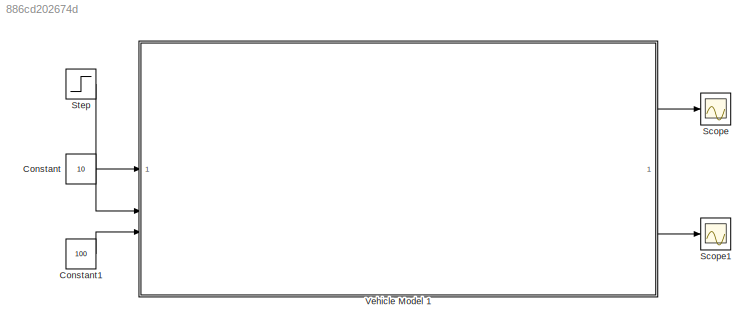
MODEL slx_886cd202674d
KIND model
CONFIG AbsTol = auto
CONFIG EnableMultiTasking = off
CONFIG FixedStep = auto
CONFIG MaxStep = auto
CONFIG MinStep = auto
CONFIG RelTol = 1e-3
CONFIG SampleTimeConstraint = Unconstrained
CONFIG SolverName = VariableStepAuto
CONFIG StartTime = 0.0
CONFIG StopTime = 30
BLOCK [Constant] Constant
  Value = 10
BLOCK [Constant] Constant1
  Value = 100
BLOCK [Scope] Scope
  Floating = off
  NumInputPorts = 1
  ScopeSpecificationString = Simulink.scopes.TimeScopeBlockCfg('CurrentConfiguration', extmgr.ConfigurationSet(extmgr.Configuration('Core','General UI',true),extmgr.Configuration('Core','Source UI',true),extmgr.Configuration('Sources','WiredSimulink',true),extmgr.Configuration('Visuals','Time Domain',true,'SerializedDisplays',{struct('MinYLimReal','8.73325','MaxYLimReal','21.40072','YLabelReal','','MinYLimMag','8.73325','MaxY...<+1378ch>
BLOCK [Scope] Scope1
  Floating = off
  NumInputPorts = 1
  ScopeSpecificationString = Simulink.scopes.TimeScopeBlockCfg('CurrentConfiguration', extmgr.ConfigurationSet(extmgr.Configuration('Core','General UI',true),extmgr.Configuration('Core','Source UI',true),extmgr.Configuration('Sources','WiredSimulink',true,'DataLoggingVariableName','ScopeData1'),extmgr.Configuration('Visuals','Time Domain',true,'SerializedDisplays',{struct('MinYLimReal','28.71876','MaxYLimReal','741.53118','YL...<+1427ch>
BLOCK [Step] Step
  After = 20
  Before = 20
  SampleTime = 0
  Time = 0
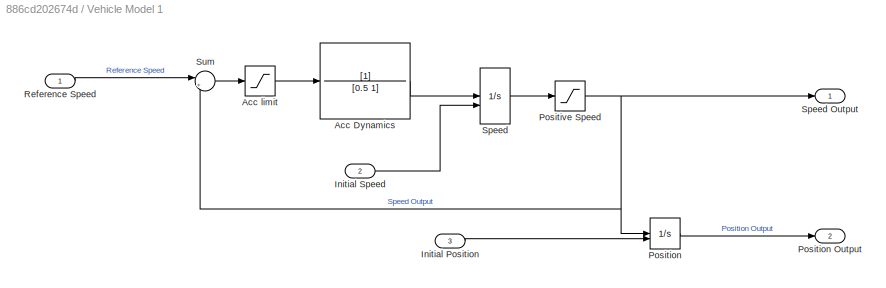
BLOCK [SubSystem] Vehicle Model 1
BLOCK [TransferFcn] Vehicle Model 1/Acc Dynamics
  Denominator = [0.5 1]
BLOCK [Saturate] Vehicle Model 1/Acc limit
  LowerLimit = -3
  UpperLimit = 2
BLOCK [Inport] Vehicle Model 1/Initial Position
  Port = 3
BLOCK [Inport] Vehicle Model 1/Initial Speed
  Port = 2
BLOCK [Integrator] Vehicle Model 1/Position
  InitialConditionSource = external
BLOCK [Outport] Vehicle Model 1/Position Output
  Port = 2
BLOCK [Saturate] Vehicle Model 1/Positive Speed
  LowerLimit = 0
  UpperLimit = inf
BLOCK [Inport] Vehicle Model 1/Reference Speed
BLOCK [Integrator] Vehicle Model 1/Speed
  InitialConditionSource = external
BLOCK [Outport] Vehicle Model 1/Speed Output
BLOCK [Sum] Vehicle Model 1/Sum
  Inputs = |+-
LINE Constant1:1 -> Vehicle Model 1:3
LINE Constant:1 -> Vehicle Model 1:2
LINE Step:1 -> Vehicle Model 1:1
LINE Vehicle Model 1/Acc Dynamics:1 -> Vehicle Model 1/Speed:1
LINE Vehicle Model 1/Acc limit:1 -> Vehicle Model 1/Acc Dynamics:1
LINE Vehicle Model 1/Initial Position:1 -> Vehicle Model 1/Position:2
LINE Vehicle Model 1/Initial Speed:1 -> Vehicle Model 1/Speed:2
LINE Vehicle Model 1/Position:1 -> Vehicle Model 1/Position Output:1
NET Vehicle Model 1/Positive Speed:1 -> Vehicle Model 1/Position:1, Vehicle Model 1/Speed Output:1, Vehicle Model 1/Sum:2
LINE Vehicle Model 1/Reference Speed:1 -> Vehicle Model 1/Sum:1
LINE Vehicle Model 1/Speed:1 -> Vehicle Model 1/Positive Speed:1
LINE Vehicle Model 1/Sum:1 -> Vehicle Model 1/Acc limit:1
LINE Vehicle Model 1:1 -> Scope:1
LINE Vehicle Model 1:2 -> Scope1:1
note: NET lines group one-source signal fan-out (src -> all destinations, sorted); 1:1 wires keep LINE
